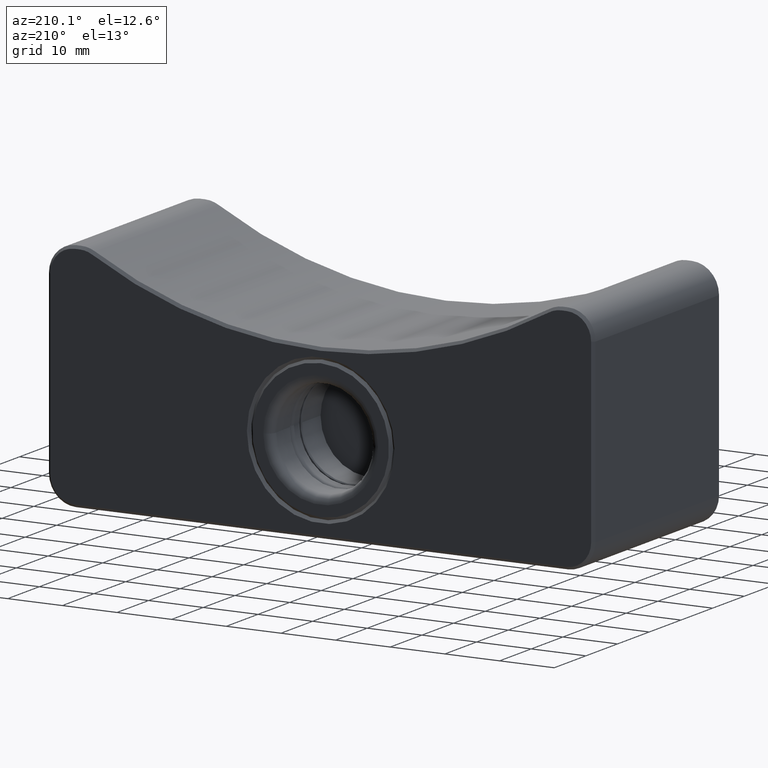
[diagram: clean part render]
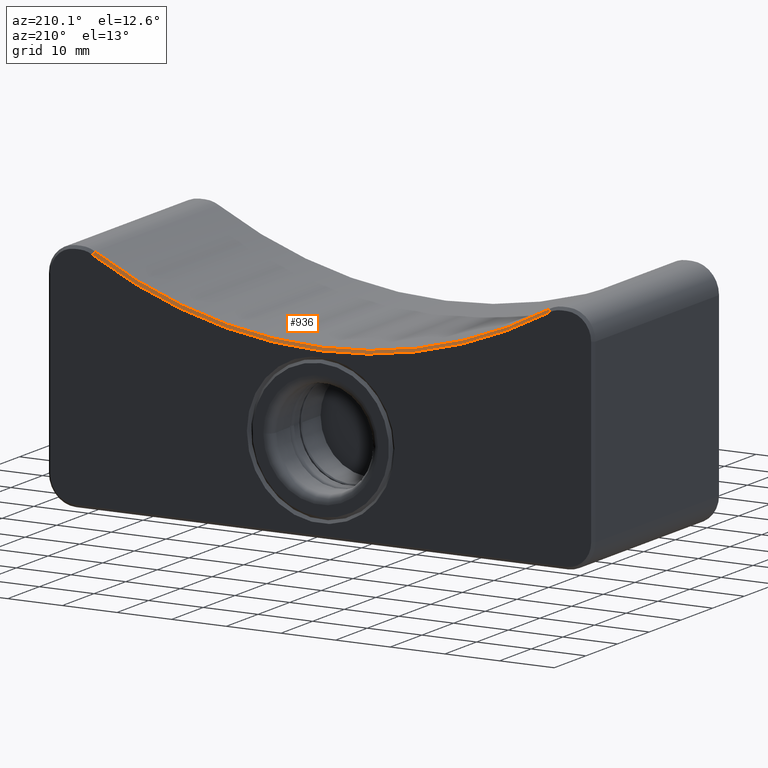
[diagram: same view with one face highlighted and labeled with its STEP entity id]
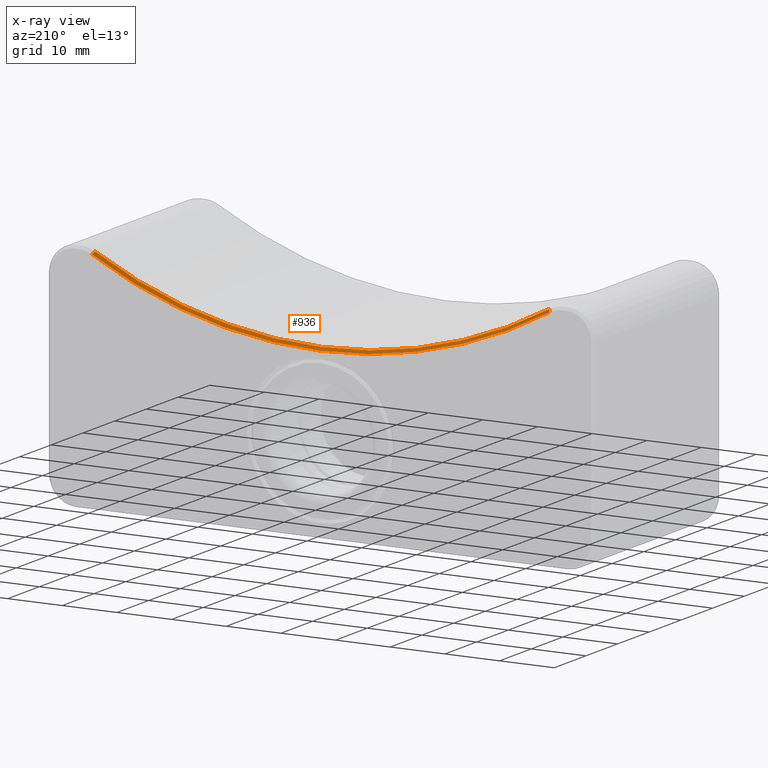
[diagram: x-ray of the same camera — body ghosted, the highlighted face saturated]
A machine part, auxiliary view. The second image highlights one B-rep face of the part: STEP entity #936.
The next image is the same camera in x-ray: the body ghosted, the highlighted face saturated — about 0% of this face is hidden behind the body in this view.
In plain terms, the highlighted conical surface has half-angle 45 deg.
Its self-contained STEP definition (entity closure, byte-faithful):
#27=CONICAL_SURFACE('',#1088,85.24999999999,0.785398163397448);
#108=FACE_OUTER_BOUND('',#175,.T.);
#175=EDGE_LOOP('',(#774,#775,#776,#777));
#233=LINE('',#1642,#299);
#234=LINE('',#1646,#300);
#299=VECTOR('',#1341,0.70710678137078);
#300=VECTOR('',#1346,0.707106781372484);
#379=CIRCLE('',#1070,85.5);
#387=CIRCLE('',#1089,85.);
#445=VERTEX_POINT('',#1590);
#446=VERTEX_POINT('',#1592);
#460=VERTEX_POINT('',#1640);
#461=VERTEX_POINT('',#1644);
#544=EDGE_CURVE('',#445,#446,#379,.T.);
#569=EDGE_CURVE('',#445,#460,#233,.T.);
#570=EDGE_CURVE('',#460,#461,#387,.T.);
#571=EDGE_CURVE('',#446,#461,#234,.T.);
#774=ORIENTED_EDGE('',*,*,#544,.F.);
#775=ORIENTED_EDGE('',*,*,#569,.T.);
#776=ORIENTED_EDGE('',*,*,#570,.T.);
#777=ORIENTED_EDGE('',*,*,#571,.F.);
#936=ADVANCED_FACE('',(#108),#27,.F.);
#1070=AXIS2_PLACEMENT_3D('',#1593,#1288,#1289);
#1088=AXIS2_PLACEMENT_3D('',#1643,#1342,#1343);
#1089=AXIS2_PLACEMENT_3D('',#1645,#1344,#1345);
#1288=DIRECTION('center_axis',(0.,-1.,0.));
#1289=DIRECTION('ref_axis',(-0.48910979857462,0.,-0.872222222222236));
#1341=DIRECTION('',(0.34585285448831,-0.70710678118652,0.616754248499617));
#1342=DIRECTION('center_axis',(0.,1.,0.));
#1343=DIRECTION('ref_axis',(0.,0.,-1.));
#1344=DIRECTION('center_axis',(0.,-1.,0.));
#1345=DIRECTION('ref_axis',(-0.48910979857462,0.,-0.872222222222235));
#1346=DIRECTION('',(-0.345852853990608,-0.707106781186516,0.616754248778714));
#1590=CARTESIAN_POINT('',(-41.81888777304,40.0000000000014,25.4249999971456));
#1592=CARTESIAN_POINT('',(41.8188877719309,40.0000000000005,25.4249999965226));
#1593=CARTESIAN_POINT('Origin',(0.,40.,100.));
#1640=CARTESIAN_POINT('',(-41.5743328738991,39.5000000000322,25.8611111081207));
#1642=CARTESIAN_POINT('',(-41.81888777217,40.00000000079,25.42499999576));
#1643=CARTESIAN_POINT('Origin',(0.,39.74999999999,100.));
#1644=CARTESIAN_POINT('',(41.5743328729977,39.5000000000313,25.8611111076138));
#1645=CARTESIAN_POINT('Origin',(0.,39.5,100.));
#1646=CARTESIAN_POINT('',(41.81888777079,40.00000000079,25.42499999498));